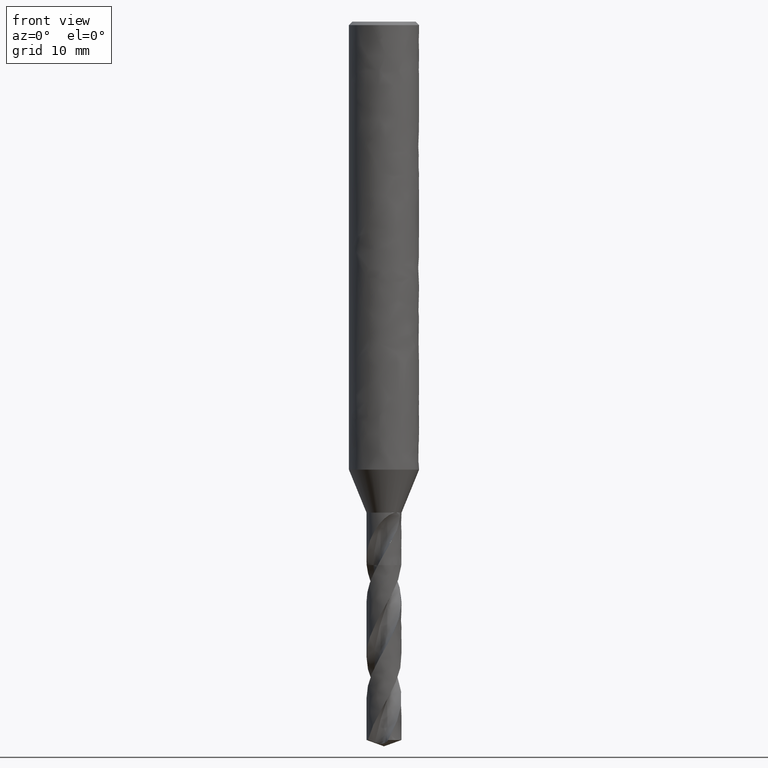
[diagram: clean part render]
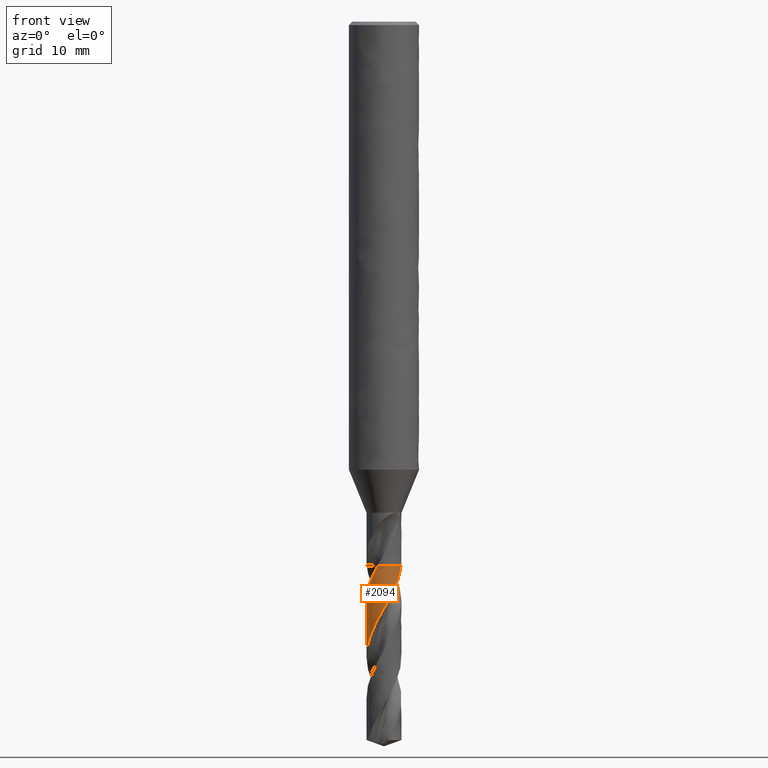
[diagram: same view with one face highlighted and labeled with its STEP entity id]
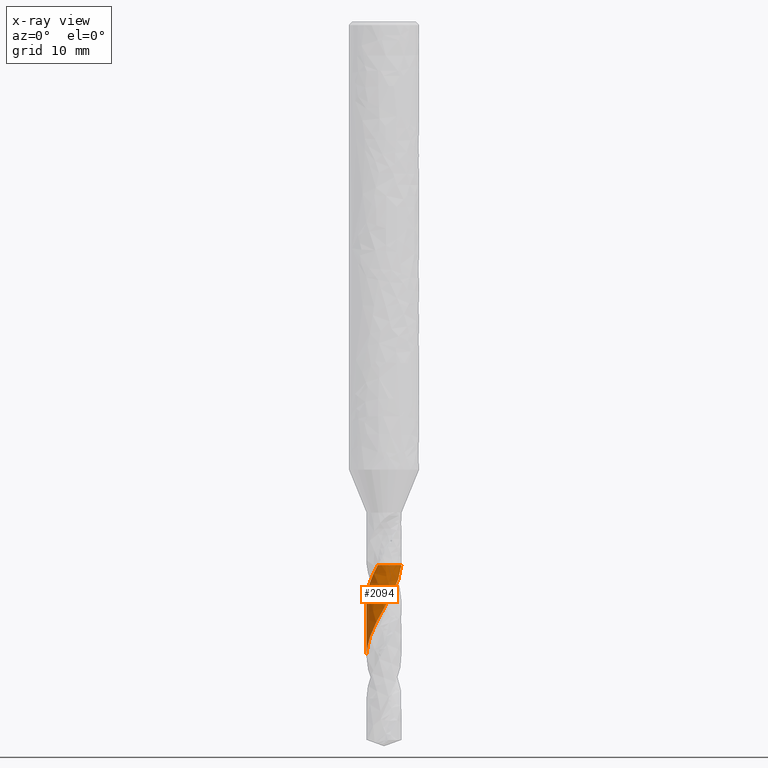
[diagram: x-ray of the same camera — body ghosted, the highlighted face saturated]
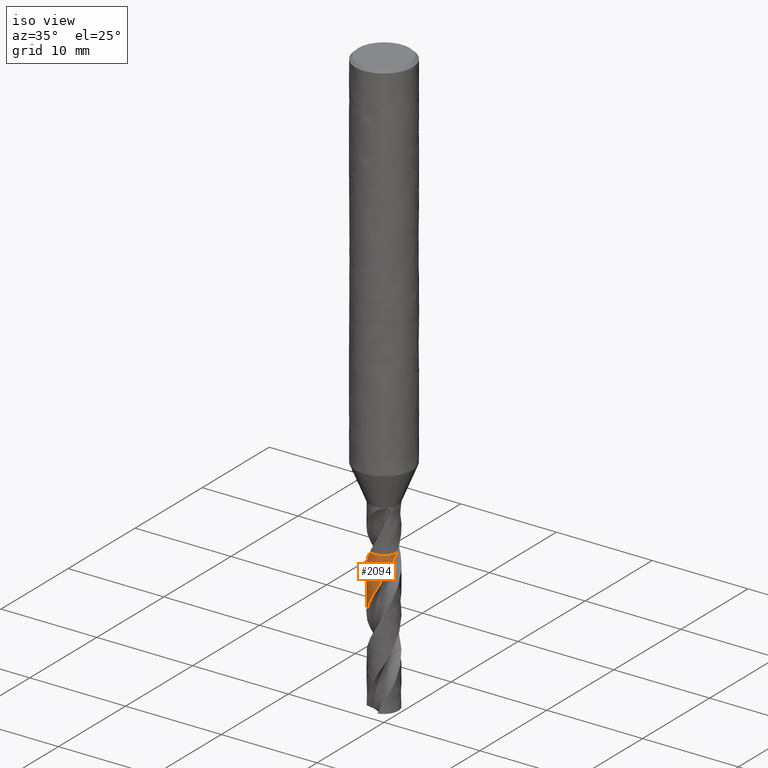
[diagram: same view with one face highlighted and labeled with its STEP entity id]
A machine part, front view. The second image highlights one B-rep face of the part: STEP entity #2094.
The next image is the same camera in x-ray: the body ghosted, the highlighted face saturated — about 0% of this face is hidden behind the body in this view.
A second angle (iso view) of the same face is appended — the face is thin or edge-on in the first view.
In plain terms, the highlighted face is a freeform B-spline surface patch.
Its self-contained STEP definition (entity closure, byte-faithful):
#1637 = EDGE_CURVE('', #1638, #1640, #1642, .T.);
#1638 = VERTEX_POINT('', #1639);
#1639 = CARTESIAN_POINT('', (1.48073476619094, -0.239634204973885, -46.5));
#1640 = VERTEX_POINT('', #1641);
#1641 = CARTESIAN_POINT('', (-0.529514623406861, -1.40342946513114, -46.5));
#1642 = CIRCLE('', #1643, 1.5);
#1643 = AXIS2_PLACEMENT_3D('', #1644, #1645, #1646);
#1644 = CARTESIAN_POINT('', (1.74347074734441E-31, 2.8473038080176E-15, -46.5));
#1645 = DIRECTION('', (3.74939945665464E-33, 6.12323399573677E-17, -1.));
#1646 = DIRECTION('', (-1., 6.12323399573677E-17, 0.));
#1698 = EDGE_CURVE('', #1638, #1699, #1701, .T.);
#1699 = VERTEX_POINT('', #1700);
#1700 = CARTESIAN_POINT('', (-1.5, 3.41740027781363E-15, -54.3103819026507));
#1701 = B_SPLINE_CURVE_WITH_KNOTS('', 3, (#1702, #1703, #1704, #1705, #1706, #1707, #1708, #1709, #1710, #1711, #1712, #1713, #1714, #1715, #1716, #1717, #1718, #1719, #1720, #1721, #1722, #1723, #1724, #1725, #1726, #1727, #1728, #1729, #1730, #1731, #1732, #1733, #1734, #1735, #1736, #1737, #1738, #1739, #1740, #1741, #1742, #1743, #1744, #1745, #1746, #1747, #1748, #1749, #1750, #1751, #1752, #1753, #1754, #1755, #1756, #1757, #1758, #1759, #1760, #1761, #1762, #1763, #1764, #1765, #1766, #1767, #1768, #1769, #1770, #1771, #1772, #1773, #1774, #1775, #1776, #1777, #1778, #1779, #1780, #1781, #1782, #1783, #1784, #1785, #1786, #1787, #1788, #1789, #1790, #1791, #1792, #1793, #1794, #1795, #1796, #1797, #1798), .UNSPECIFIED., .F., .U., (4, 3, 3, 3, 3, 3, 3, 3, 3, 3, 3, 3, 3, 3, 3, 3, 3, 3, 3, 3, 3, 3, 3, 3, 3, 3, 3, 3, 3, 3, 3, 3, 4), (4.28165723983764, 4.53635514624671, 4.83237784894634, 5.1283037780297, 5.42413710944931, 5.71987949503307, 6.0155327393694, 6.31109799645025, 6.60657602217743, 6.90196713542238, 7.19727123219736, 7.49248778306903, 7.78761582144109, 8.08265392461201, 8.37760018468404, 8.50882903370241, 8.54774312150395, 8.8440104655925, 9.14017384381886, 9.43623748992309, 9.73220493005125, 10.028079064191, 10.3238622299644, 10.6195562521343, 10.9151624899094, 11.2106818821109, 11.5061149433424, 11.8014617717575, 12.0967220503139, 12.3918950400332, 12.6869795650103, 12.9819739885657, 13.2806938980969), .UNSPECIFIED.);
#1702 = CARTESIAN_POINT('', (1.48073476619094, -0.239634204973885, -46.5));
#1703 = CARTESIAN_POINT('', (1.47398167788507, -0.281362524329422, -46.5736276759469));
#1704 = CARTESIAN_POINT('', (1.46546191393732, -0.322811973007047, -46.6472835783417));
#1705 = CARTESIAN_POINT('', (1.45521126477287, -0.363813379190935, -46.7209157750079));
#1706 = CARTESIAN_POINT('', (1.44329744532744, -0.411467273344055, -46.8064948132111));
#1707 = CARTESIAN_POINT('', (1.42903660446747, -0.458548544185449, -46.8920999176318));
#1708 = CARTESIAN_POINT('', (1.41250743292741, -0.504799714664028, -46.9776815758249));
#1709 = CARTESIAN_POINT('', (1.39598366498542, -0.551035765042077, -47.0632352562768));
#1710 = CARTESIAN_POINT('', (1.37718340922493, -0.596469568007087, -47.1488167093867));
#1711 = CARTESIAN_POINT('', (1.35620919116265, -0.640856169359364, -47.2343745921182));
#1712 = CARTESIAN_POINT('', (1.33524153610619, -0.685228881778016, -47.3199057030826));
#1713 = CARTESIAN_POINT('', (1.31208862814681, -0.728581765745317, -47.4054640235975));
#1714 = CARTESIAN_POINT('', (1.2868766121079, -0.770680598698116, -47.4909987745472));
#1715 = CARTESIAN_POINT('', (1.26167234681115, -0.812766489520517, -47.576507230186));
#1716 = CARTESIAN_POINT('', (1.23439525201114, -0.8536241494238, -47.6620430079111));
#1717 = CARTESIAN_POINT('', (1.205193521477, -0.893033356482195, -47.7475552673482));
#1718 = CARTESIAN_POINT('', (1.17600059278803, -0.932430685006943, -47.8330417520914));
#1719 = CARTESIAN_POINT('', (1.14486682901591, -0.970403874287607, -47.9185555256669));
#1720 = CARTESIAN_POINT('', (1.11196097897053, -1.00674861869629, -48.0040457604351));
#1721 = CARTESIAN_POINT('', (1.07906492180073, -1.04308254680455, -48.0895105530637));
#1722 = CARTESIAN_POINT('', (1.04437839974342, -1.07781047521912, -48.1750026350371));
#1723 = CARTESIAN_POINT('', (1.00808902846966, -1.11074592534886, -48.2604711868293));
#1724 = CARTESIAN_POINT('', (0.971810367422845, -1.14367165510778, -48.3459145139467));
#1725 = CARTESIAN_POINT('', (0.93390847051337, -1.17482533679711, -48.4313851276564));
#1726 = CARTESIAN_POINT('', (0.894587937692254, -1.20404004158313, -48.516832209522));
#1727 = CARTESIAN_POINT('', (0.855278970689279, -1.23324615309896, -48.6022541578163));
#1728 = CARTESIAN_POINT('', (0.814529196816516, -1.2605315298748, -48.6877033819589));
#1729 = CARTESIAN_POINT('', (0.772558204735652, -1.28575029469008, -48.7731290854214));
#1730 = CARTESIAN_POINT('', (0.730599576491776, -1.31096163054831, -48.8585296241351));
#1731 = CARTESIAN_POINT('', (0.687395976028613, -1.33412228393463, -48.9439574179537));
#1732 = CARTESIAN_POINT('', (0.643179854888507, -1.3551087315288, -49.0293617129344));
#1733 = CARTESIAN_POINT('', (0.598976842067277, -1.3760889574771, -49.1147406889432));
#1734 = CARTESIAN_POINT('', (0.553736172944368, -1.39490848632061, -49.2001468840222));
#1735 = CARTESIAN_POINT('', (0.507700943791672, -1.41146723365193, -49.2855296184086));
#1736 = CARTESIAN_POINT('', (0.461679517026378, -1.42802101630187, -49.3708867531488));
#1737 = CARTESIAN_POINT('', (0.414837205899562, -1.4423250153582, -49.4562710532804));
#1738 = CARTESIAN_POINT('', (0.367425452803056, -1.45430345410869, -49.5416319492809));
#1739 = CARTESIAN_POINT('', (0.320028147624052, -1.46627824263569, -49.6269668330143));
#1740 = CARTESIAN_POINT('', (0.272034075557125, -1.47593587913469, -49.7123288083388));
#1741 = CARTESIAN_POINT('', (0.223700667016224, -1.48322554305693, -49.7976674566702));
#1742 = CARTESIAN_POINT('', (0.175382304294736, -1.4905129377627, -49.8829795397347));
#1743 = CARTESIAN_POINT('', (0.126696468614284, -1.49543810722614, -49.9683186212844));
#1744 = CARTESIAN_POINT('', (0.0779041663373912, -1.49797561424323, -50.0536344704049));
#1745 = CARTESIAN_POINT('', (0.0561952703941445, -1.49910461355702, -50.0915935910948));
#1746 = CARTESIAN_POINT('', (0.034461161952212, -1.49976162254117, -50.1295552706316));
#1747 = CARTESIAN_POINT('', (0.0127249680238544, -1.49994602409179, -50.1675151114591));
#1748 = CARTESIAN_POINT('', (0.00627940239307712, -1.50000070580382, -50.1787715736619));
#1749 = CARTESIAN_POINT('', (-0.000166490922740106, -1.50001383963021, -50.1900281267317));
#1750 = CARTESIAN_POINT('', (-0.00661210913150566, -1.49998542660015, -50.2012846557847));
#1751 = CARTESIAN_POINT('', (-0.0556849846787625, -1.4997691076928, -50.2869847750625));
#1752 = CARTESIAN_POINT('', (-0.104758311035905, -1.4971416913911, -50.3727123116278));
#1753 = CARTESIAN_POINT('', (-0.153567261276033, -1.49211832515547, -50.4584162002251));
#1754 = CARTESIAN_POINT('', (-0.202359083524515, -1.48709672171488, -50.5440900136932));
#1755 = CARTESIAN_POINT('', (-0.250915256320274, -1.4796779198989, -50.62979123033));
#1756 = CARTESIAN_POINT('', (-0.298974186937718, -1.46990286602387, -50.7154688134148));
#1757 = CARTESIAN_POINT('', (-0.347016933855589, -1.46013110386867, -50.8011175448325));
#1758 = CARTESIAN_POINT('', (-0.394590778406028, -1.44799898633418, -50.8867936536598));
#1759 = CARTESIAN_POINT('', (-0.44143980436398, -1.43357277426826, -50.9724461564412));
#1760 = CARTESIAN_POINT('', (-0.488273606716029, -1.41915125000454, -51.0580708264146));
#1761 = CARTESIAN_POINT('', (-0.534410318201734, -1.40242873288951, -51.1437228321554));
#1762 = CARTESIAN_POINT('', (-0.579602067796276, -1.38349609432275, -51.2293512764854));
#1763 = CARTESIAN_POINT('', (-0.624779570347759, -1.36456942441442, -51.3149527257965));
#1764 = CARTESIAN_POINT('', (-0.66903901934133, -1.3434230045983, -51.4005814497229));
#1765 = CARTESIAN_POINT('', (-0.712142867809714, -1.32017140395774, -51.4861866774233));
#1766 = CARTESIAN_POINT('', (-0.755233463728353, -1.29692695216828, -51.5717655852571));
#1767 = CARTESIAN_POINT('', (-0.797194353874928, -1.27156502727857, -51.6573716840418));
#1768 = CARTESIAN_POINT('', (-0.837800489572266, -1.24422278538551, -51.7429543751285));
#1769 = CARTESIAN_POINT('', (-0.878394387327512, -1.21688878394102, -51.828511273167));
#1770 = CARTESIAN_POINT('', (-0.917658217287973, -1.18755958211608, -51.9140952596928));
#1771 = CARTESIAN_POINT('', (-0.95538150926871, -1.1563936058918, -51.9996559407327));
#1772 = CARTESIAN_POINT('', (-0.993093602117529, -1.12523688209117, -52.0851912208783));
#1773 = CARTESIAN_POINT('', (-1.02928839078204, -1.09222603311669, -52.1707534968928));
#1774 = CARTESIAN_POINT('', (-1.06377201598191, -1.05753917091226, -52.2562925448071));
#1775 = CARTESIAN_POINT('', (-1.09824551030555, -1.02286249929264, -52.3418064623734));
#1776 = CARTESIAN_POINT('', (-1.13102930460895, -0.986490224639982, -52.4273473224436));
#1777 = CARTESIAN_POINT('', (-1.16194806098456, -0.94861831290262, -52.5128649947024));
#1778 = CARTESIAN_POINT('', (-1.19285778497075, -0.910757464800897, -52.5983576844261));
#1779 = CARTESIAN_POINT('', (-1.22192187937022, -0.871375427277539, -52.683877294462));
#1780 = CARTESIAN_POINT('', (-1.24898521145891, -0.830684020285046, -52.7693737289216));
#1781 = CARTESIAN_POINT('', (-1.27604064413602, -0.790004490550341, -52.8548452081567));
#1782 = CARTESIAN_POINT('', (-1.30111244822237, -0.747992365407461, -52.9403436068324));
#1783 = CARTESIAN_POINT('', (-1.32406714070227, -0.704873184986145, -53.0258188237808));
#1784 = CARTESIAN_POINT('', (-1.3470151064284, -0.661766640417377, -53.1112689926594));
#1785 = CARTESIAN_POINT('', (-1.36786066013255, -0.617528428267074, -53.1967460921304));
#1786 = CARTESIAN_POINT('', (-1.38649317005788, -0.572395570722594, -53.2821999944449));
#1787 = CARTESIAN_POINT('', (-1.40512017158862, -0.527276055963896, -53.367628633721));
#1788 = CARTESIAN_POINT('', (-1.42154628649515, -0.481236172316581, -53.4530842180335));
#1789 = CARTESIAN_POINT('', (-1.435684692539, -0.434522109459593, -53.5385165890212));
#1790 = CARTESIAN_POINT('', (-1.44981886123562, -0.38782204702838, -53.6239233555229));
#1791 = CARTESIAN_POINT('', (-1.46167486868697, -0.340421226212109, -53.7093570766384));
#1792 = CARTESIAN_POINT('', (-1.47119041965958, -0.292572639017869, -53.7947675754854));
#1793 = CARTESIAN_POINT('', (-1.48070306514378, -0.244738661961948, -53.8801519950003));
#1794 = CARTESIAN_POINT('', (-1.48788215564422, -0.196429714762168, -53.9655633662594));
#1795 = CARTESIAN_POINT('', (-1.49269040444923, -0.147903199645116, -54.0509515209122));
#1796 = CARTESIAN_POINT('', (-1.49755937665122, -0.0987638429382375, -54.1374180429755));
#1797 = CARTESIAN_POINT('', (-1.5, -0.0493732697634189, -54.2239115439232));
#1798 = CARTESIAN_POINT('', (-1.5, 3.33369987009775E-15, -54.3103819026507));
#2094 = ADVANCED_FACE('', (#2095), #2156, .T.);
#2095 = FACE_OUTER_BOUND('', #2096, .T.);
#2096 = EDGE_LOOP('', (#2097, #2098, #2116, #2149, #2155));
#2097 = ORIENTED_EDGE('', *, *, #1637, .T.);
#2098 = ORIENTED_EDGE('', *, *, #2099, .T.);
#2099 = EDGE_CURVE('', #1640, #2100, #2102, .T.);
#2100 = VERTEX_POINT('', #2101);
#2101 = CARTESIAN_POINT('', (-0.884643870118816, -1.21136502469784, -47.2029310706701));
#2102 = B_SPLINE_CURVE_WITH_KNOTS('', 3, (#2103, #2104, #2105, #2106, #2107, #2108, #2109, #2110, #2111, #2112, #2113, #2114, #2115), .UNSPECIFIED., .F., .U., (4, 3, 3, 3, 4), (1.79825494503923, 1.96639827128208, 2.26225888320251, 2.55802629434117, 2.60941792356076), .UNSPECIFIED.);
#2103 = CARTESIAN_POINT('', (-0.529514623406861, -1.40342946513114, -46.5));
#2104 = CARTESIAN_POINT('', (-0.555698752443162, -1.3935501804429, -46.5485607274405));
#2105 = CARTESIAN_POINT('', (-0.58161141155329, -1.3829356810196, -46.5971389757904));
#2106 = CARTESIAN_POINT('', (-0.607197333737665, -1.37160905432331, -46.645702555174));
#2107 = CARTESIAN_POINT('', (-0.652217655169183, -1.35167901737068, -46.731153762989));
#2108 = CARTESIAN_POINT('', (-0.696267353597211, -1.32952450465068, -46.8166318398275));
#2109 = CARTESIAN_POINT('', (-0.739106592550111, -1.30526680983196, -46.9020853855689));
#2110 = CARTESIAN_POINT('', (-0.781932336463792, -1.28101675657155, -46.9875120120892));
#2111 = CARTESIAN_POINT('', (-0.823572835239661, -1.25465098165086, -47.0729664885084));
#2112 = CARTESIAN_POINT('', (-0.863801437461538, -1.22631442812982, -47.1583978483321));
#2113 = CARTESIAN_POINT('', (-0.870791434775474, -1.2213907563625, -47.1732421367914));
#2114 = CARTESIAN_POINT('', (-0.877739289894673, -1.2164073483959, -47.1880866356982));
#2115 = CARTESIAN_POINT('', (-0.884643870118802, -1.21136502469785, -47.2029310706701));
#2116 = ORIENTED_EDGE('', *, *, #2117, .T.);
#2117 = EDGE_CURVE('', #2100, #2118, #2120, .T.);
#2118 = VERTEX_POINT('', #2119);
#2119 = CARTESIAN_POINT('', (-1.5, 3.132329119477E-15, -49.6548165831626));
#2120 = B_SPLINE_CURVE_WITH_KNOTS('', 3, (#2121, #2122, #2123, #2124, #2125, #2126, #2127, #2128, #2129, #2130, #2131, #2132, #2133, #2134, #2135, #2136, #2137, #2138, #2139, #2140, #2141, #2142, #2143, #2144, #2145, #2146, #2147, #2148), .UNSPECIFIED., .F., .U., (4, 3, 3, 3, 3, 3, 3, 3, 3, 4), (0., 0.443484352225542, 0.739010778091484, 1.03444919640016, 1.32979974178875, 1.62506221423518, 1.92023596560287, 2.21531990663016, 2.51031247638377, 2.82808759715805), .UNSPECIFIED.);
#2121 = CARTESIAN_POINT('', (-0.884643870118816, -1.21136502469784, -47.2029310706701));
#2122 = CARTESIAN_POINT('', (-0.944226983839602, -1.16785226410049, -47.3310312054127));
#2123 = CARTESIAN_POINT('', (-1.00062037828974, -1.11991006338567, -47.4592254548207));
#2124 = CARTESIAN_POINT('', (-1.05313969356211, -1.06812770109379, -47.5873404842877));
#2125 = CARTESIAN_POINT('', (-1.08813719787873, -1.03362128305623, -47.6727130043509));
#2126 = CARTESIAN_POINT('', (-1.12144286227361, -0.997386717204393, -47.7581146640665));
#2127 = CARTESIAN_POINT('', (-1.15287757004589, -0.95962144019664, -47.8434939846068));
#2128 = CARTESIAN_POINT('', (-1.18430291658478, -0.921867409661242, -47.9288478792468));
#2129 = CARTESIAN_POINT('', (-1.21387714113694, -0.882561074374987, -48.0142307109401));
#2130 = CARTESIAN_POINT('', (-1.2414413262795, -0.841916524012564, -48.0995913738958));
#2131 = CARTESIAN_POINT('', (-1.26899731294383, -0.801284062651112, -48.1849266478355));
#2132 = CARTESIAN_POINT('', (-1.29456106319666, -0.759289688207613, -48.2702907192656));
#2133 = CARTESIAN_POINT('', (-1.31799548889297, -0.716161916927853, -48.3556327448593));
#2134 = CARTESIAN_POINT('', (-1.34142292649039, -0.673047006263268, -48.4409493216315));
#2135 = CARTESIAN_POINT('', (-1.36273651871722, -0.628773229461531, -48.5262945991352));
#2136 = CARTESIAN_POINT('', (-1.38182236267125, -0.583581149474209, -48.6116178966167));
#2137 = CARTESIAN_POINT('', (-1.40090247167139, -0.538402648896603, -48.6969155559772));
#2138 = CARTESIAN_POINT('', (-1.41776774191012, -0.492279020921243, -48.782241877221));
#2139 = CARTESIAN_POINT('', (-1.43232854852098, -0.445460356363825, -48.867546236583));
#2140 = CARTESIAN_POINT('', (-1.4468849248226, -0.39865593697618, -48.9528246410168));
#2141 = CARTESIAN_POINT('', (-1.45914702388283, -0.351128700969941, -49.0381317042626));
#2142 = CARTESIAN_POINT('', (-1.4690502858655, -0.303135708220787, -49.1234167913359));
#2143 = CARTESIAN_POINT('', (-1.47895048135239, -0.255157576262973, -49.2086754703065));
#2144 = CARTESIAN_POINT('', (-1.48649922822027, -0.20668532139916, -49.293962827296));
#2145 = CARTESIAN_POINT('', (-1.49165753227057, -0.157980398849192, -49.3792281765029));
#2146 = CARTESIAN_POINT('', (-1.4972142169489, -0.105513949749998, -49.4710786480749));
#2147 = CARTESIAN_POINT('', (-1.5, -0.0527463701527222, -49.5629583522337));
#2148 = CARTESIAN_POINT('', (-1.5, 3.20388646286104E-15, -49.6548165831626));
#2149 = ORIENTED_EDGE('', *, *, #2150, .T.);
#2150 = EDGE_CURVE('', #2118, #1699, #2151, .T.);
#2151 = LINE('', #2152, #2153);
#2152 = CARTESIAN_POINT('', (-1.5, 3.132329119477E-15, -49.6548165831626));
#2153 = VECTOR('', #2154, 4.65556531948811);
#2154 = DIRECTION('', (0., 2.85071158336627E-16, -4.65556531948811));
#2155 = ORIENTED_EDGE('', *, *, #1698, .F.);
#2156 = (
   BOUNDED_SURFACE ()
   B_SPLINE_SURFACE (2, 1, ((#2157, #2158), (#2159, #2160), (#2161, #2162), (#2163, #2164), (#2165, #2166)), .UNSPECIFIED., .F., .F., .U.)
   B_SPLINE_SURFACE_WITH_KNOTS ((3, 2, 3), (2, 2), (4.97164270291479, 7.06858347057704, 9.42477796076938), (0.231314365793011, 0.632792929440315), .UNSPECIFIED.)
   GEOMETRIC_REPRESENTATION_ITEM ()
   RATIONAL_B_SPLINE_SURFACE (((0.942637482338774, 0.942637482338774), (0.739334026262149, 0.739334026262149), (1., 1.), (0.707106781186548, 0.707106781186548), (1., 1.)))
   REPRESENTATION_ITEM ('')
   SURFACE ()
);
#2157 = CARTESIAN_POINT('', (1.48073476619094, -0.239634204973885, -46.5));
#2158 = CARTESIAN_POINT('', (1.48073476619094, -0.239634204973885, -54.3103819026507));
#2159 = CARTESIAN_POINT('', (1.27676389837354, -1.5, -46.5));
#2160 = CARTESIAN_POINT('', (1.27676389837354, -1.5, -54.3103819026507));
#2161 = CARTESIAN_POINT('', (1.83697019872103E-16, -1.5, -46.5));
#2162 = CARTESIAN_POINT('', (1.83697019872103E-16, -1.5, -54.3103819026507));
#2163 = CARTESIAN_POINT('', (-1.5, -1.5, -46.5));
#2164 = CARTESIAN_POINT('', (-1.5, -1.5, -54.3103819026507));
#2165 = CARTESIAN_POINT('', (-1.5, 2.93915231795365E-15, -46.5));
#2166 = CARTESIAN_POINT('', (-1.5, 3.41740027781363E-15, -54.3103819026507));